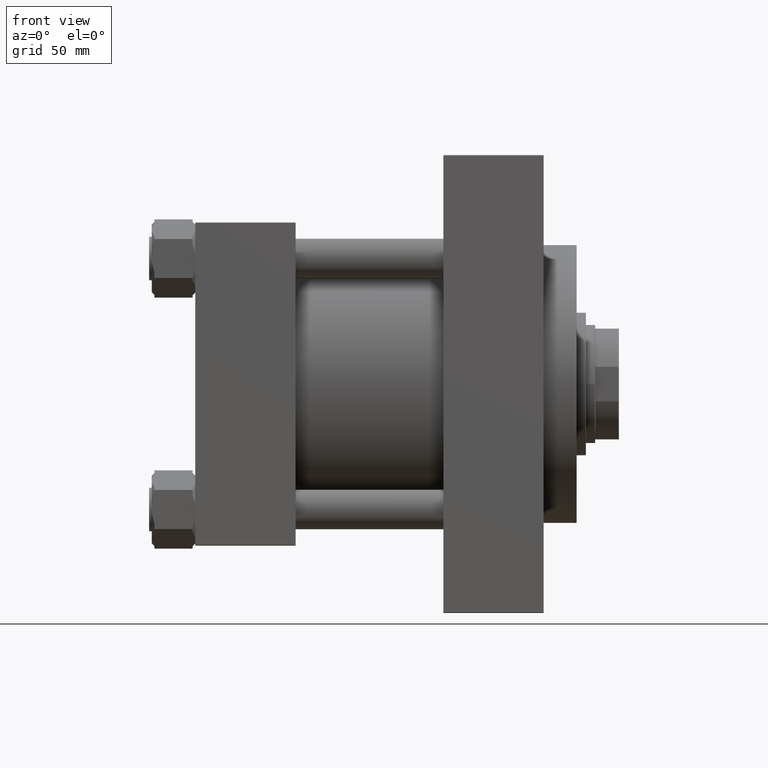
[diagram: clean part render]
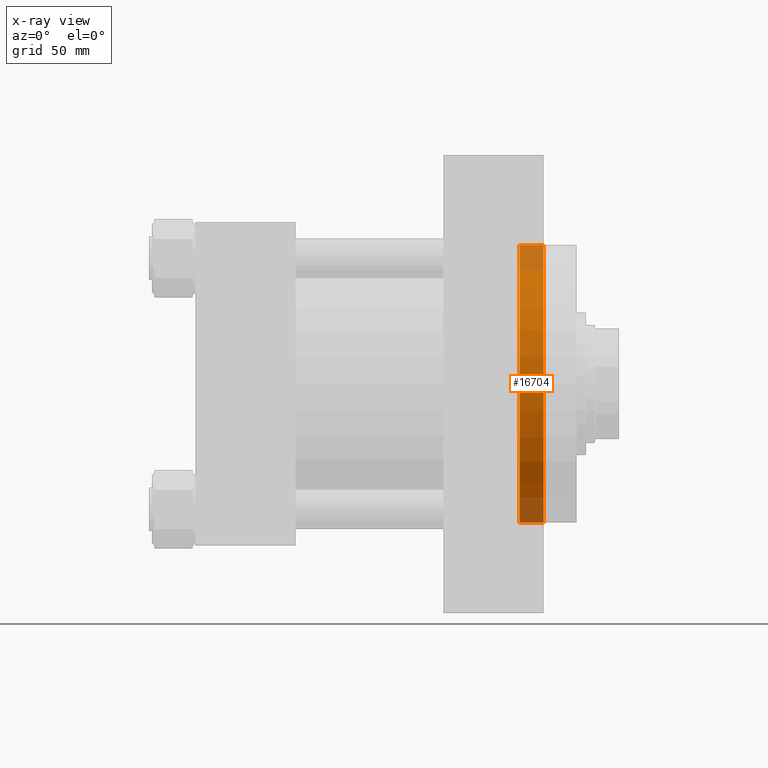
[diagram: x-ray — body ghosted, one internal face saturated and labeled with its STEP entity id]
A machine part, front view, then the same camera in x-ray: the body is ghosted and one INTERNAL B-rep face — a face not visible from any outside direction — is saturated and labeled: STEP entity #16704.
In plain terms, the highlighted cylindrical surface (partial cylindrical patch) has radius 105.25 mm, axis along (1, 0, 0).
Its self-contained STEP definition (entity closure, byte-faithful):
#274 = VECTOR ( 'NONE', #29064, 1000.000000000000000 ) ;
#536 = DIRECTION ( 'NONE',  ( -1.000000000000000000, 0.000000000000000000, -0.000000000000000000 ) ) ;
#1420 = ORIENTED_EDGE ( 'NONE', *, *, #44313, .F. ) ;
#2069 = CARTESIAN_POINT ( 'NONE',  ( 245.7400000000000375, 0.000000000000000000, 0.000000000000000000 ) ) ;
#2596 = CARTESIAN_POINT ( 'NONE',  ( 245.7400000000000375, 1.288940756102589012E-14, 105.2499999999999858 ) ) ;
#3668 = DIRECTION ( 'NONE',  ( 0.000000000000000000, 0.000000000000000000, 1.000000000000000000 ) ) ;
#4532 = CARTESIAN_POINT ( 'NONE',  ( 245.7400000000000375, 0.000000000000000000, 0.000000000000000000 ) ) ;
#5683 = VERTEX_POINT ( 'NONE', #43127 ) ;
#6775 = VERTEX_POINT ( 'NONE', #32904 ) ;
#8203 = ORIENTED_EDGE ( 'NONE', *, *, #16034, .T. ) ;
#9062 = VERTEX_POINT ( 'NONE', #18202 ) ;
#11294 = CYLINDRICAL_SURFACE ( 'NONE', #41071, 105.2499999999999858 ) ;
#13238 = ORIENTED_EDGE ( 'NONE', *, *, #20018, .F. ) ;
#16034 = EDGE_CURVE ( 'NONE', #6775, #5683, #35593, .T. ) ;
#16704 = ADVANCED_FACE ( 'NONE', ( #37533 ), #11294, .F. ) ;
#17055 = AXIS2_PLACEMENT_3D ( 'NONE', #22684, #536, #3668 ) ;
#18121 = DIRECTION ( 'NONE',  ( 1.000000000000000000, -0.000000000000000000, -0.000000000000000000 ) ) ;
#18202 = CARTESIAN_POINT ( 'NONE',  ( 264.0000000000000000, 0.000000000000000000, -105.2499999999999858 ) ) ;
#19540 = EDGE_CURVE ( 'NONE', #6775, #26456, #37970, .T. ) ;
#20018 = EDGE_CURVE ( 'NONE', #26456, #9062, #36436, .T. ) ;
#20287 = AXIS2_PLACEMENT_3D ( 'NONE', #2069, #45675, #31447 ) ;
#21635 = EDGE_LOOP ( 'NONE', ( #23642, #8203, #1420, #13238 ) ) ;
#22684 = CARTESIAN_POINT ( 'NONE',  ( 264.0000000000000000, 0.000000000000000000, 0.000000000000000000 ) ) ;
#23642 = ORIENTED_EDGE ( 'NONE', *, *, #19540, .F. ) ;
#24773 = CIRCLE ( 'NONE', #17055, 105.2499999999999858 ) ;
#26456 = VERTEX_POINT ( 'NONE', #37730 ) ;
#29064 = DIRECTION ( 'NONE',  ( 1.000000000000000000, -0.000000000000000000, -0.000000000000000000 ) ) ;
#31447 = DIRECTION ( 'NONE',  ( 0.000000000000000000, 0.000000000000000000, -1.000000000000000000 ) ) ;
#32904 = CARTESIAN_POINT ( 'NONE',  ( 245.7400000000000375, 1.288940756102589012E-14, 105.2499999999999858 ) ) ;
#34159 = DIRECTION ( 'NONE',  ( 0.000000000000000000, 0.000000000000000000, -1.000000000000000000 ) ) ;
#35593 = LINE ( 'NONE', #2596, #274 ) ;
#36436 = LINE ( 'NONE', #40751, #38756 ) ;
#37533 = FACE_OUTER_BOUND ( 'NONE', #21635, .T. ) ;
#37730 = CARTESIAN_POINT ( 'NONE',  ( 245.7400000000000375, 0.000000000000000000, -105.2499999999999858 ) ) ;
#37970 = CIRCLE ( 'NONE', #20287, 105.2499999999999858 ) ;
#38756 = VECTOR ( 'NONE', #18121, 1000.000000000000000 ) ;
#40677 = DIRECTION ( 'NONE',  ( 1.000000000000000000, -0.000000000000000000, -0.000000000000000000 ) ) ;
#40751 = CARTESIAN_POINT ( 'NONE',  ( 245.7400000000000375, 0.000000000000000000, -105.2499999999999858 ) ) ;
#41071 = AXIS2_PLACEMENT_3D ( 'NONE', #4532, #40677, #34159 ) ;
#43127 = CARTESIAN_POINT ( 'NONE',  ( 264.0000000000000000, 1.288940756102589012E-14, 105.2499999999999858 ) ) ;
#44313 = EDGE_CURVE ( 'NONE', #9062, #5683, #24773, .T. ) ;
#45675 = DIRECTION ( 'NONE',  ( 1.000000000000000000, 0.000000000000000000, 0.000000000000000000 ) ) ;